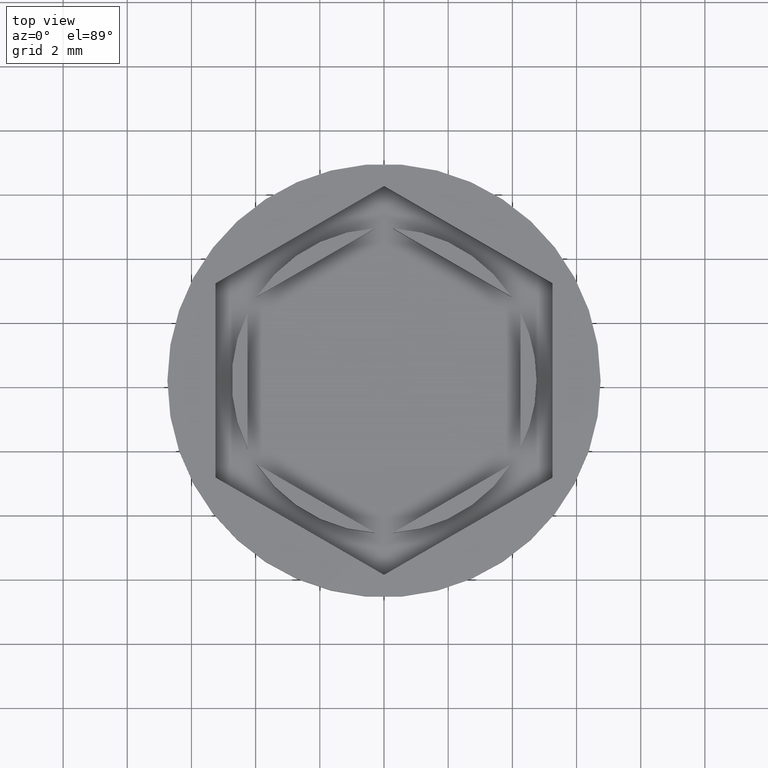
[diagram: clean part render]
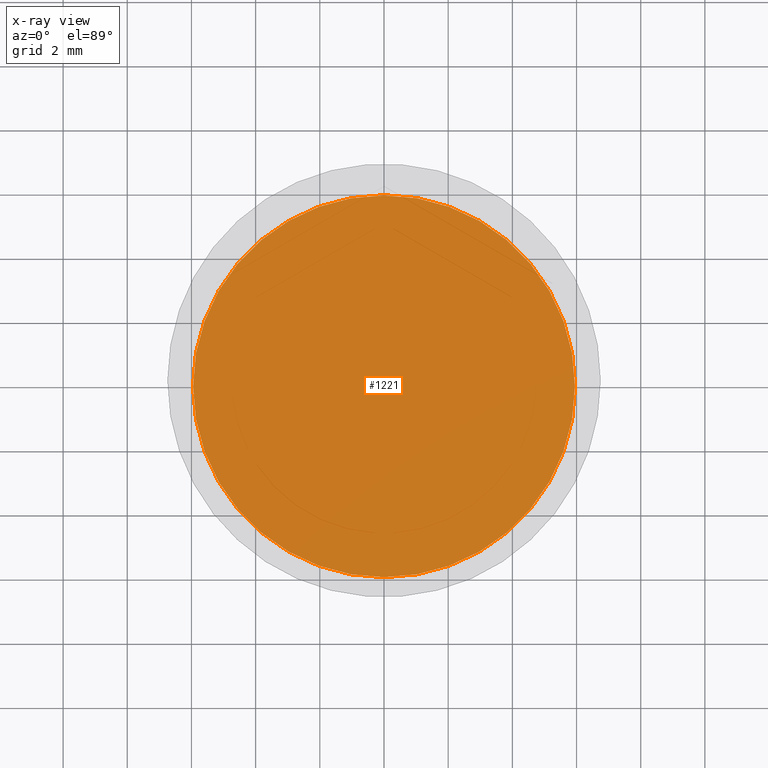
[diagram: x-ray — body ghosted, one internal face saturated and labeled with its STEP entity id]
A machine part, top view, then the same camera in x-ray: the body is ghosted and one INTERNAL B-rep face — a face not visible from any outside direction — is saturated and labeled: STEP entity #1221.
In plain terms, the highlighted planar face has unit normal (0, 0, -1).
Its self-contained STEP definition (entity closure, byte-faithful):
#32 = PLANE ( 'NONE',  #1092 ) ;
#216 = CARTESIAN_POINT ( 'NONE',  ( -5.950000000000000178, 0.000000000000000000, -10.50000000000000000 ) ) ;
#419 = DIRECTION ( 'NONE',  ( -0.000000000000000000, -0.000000000000000000, 1.000000000000000000 ) ) ;
#466 = EDGE_CURVE ( 'NONE', #841, #1968, #603, .T. ) ;
#603 = CIRCLE ( 'NONE', #1663, 5.950000000000000178 ) ;
#644 = DIRECTION ( 'NONE',  ( -1.000000000000000000, 0.000000000000000000, -0.000000000000000000 ) ) ;
#773 = FACE_OUTER_BOUND ( 'NONE', #1547, .T. ) ;
#841 = VERTEX_POINT ( 'NONE', #1269 ) ;
#1092 = AXIS2_PLACEMENT_3D ( 'NONE', #1844, #1687, #644 ) ;
#1107 = ORIENTED_EDGE ( 'NONE', *, *, #466, .T. ) ;
#1121 = DIRECTION ( 'NONE',  ( -0.000000000000000000, -0.000000000000000000, 1.000000000000000000 ) ) ;
#1221 = ADVANCED_FACE ( 'NONE', ( #773 ), #32, .F. ) ;
#1228 = EDGE_CURVE ( 'NONE', #1968, #841, #1630, .T. ) ;
#1269 = CARTESIAN_POINT ( 'NONE',  ( 5.950000000000000178, 7.470345474798855279E-16, -10.50000000000000000 ) ) ;
#1332 = CARTESIAN_POINT ( 'NONE',  ( 0.000000000000000000, 0.000000000000000000, -10.50000000000000000 ) ) ;
#1417 = DIRECTION ( 'NONE',  ( -1.000000000000000000, 0.000000000000000000, 0.000000000000000000 ) ) ;
#1547 = EDGE_LOOP ( 'NONE', ( #1695, #1107 ) ) ;
#1630 = CIRCLE ( 'NONE', #1724, 5.950000000000000178 ) ;
#1663 = AXIS2_PLACEMENT_3D ( 'NONE', #1332, #419, #1772 ) ;
#1687 = DIRECTION ( 'NONE',  ( 0.000000000000000000, 0.000000000000000000, -1.000000000000000000 ) ) ;
#1695 = ORIENTED_EDGE ( 'NONE', *, *, #1228, .T. ) ;
#1724 = AXIS2_PLACEMENT_3D ( 'NONE', #1869, #1121, #1417 ) ;
#1772 = DIRECTION ( 'NONE',  ( -1.000000000000000000, 0.000000000000000000, 0.000000000000000000 ) ) ;
#1844 = CARTESIAN_POINT ( 'NONE',  ( 0.000000000000000000, 0.000000000000000000, -10.50000000000000000 ) ) ;
#1869 = CARTESIAN_POINT ( 'NONE',  ( 0.000000000000000000, 0.000000000000000000, -10.50000000000000000 ) ) ;
#1968 = VERTEX_POINT ( 'NONE', #216 ) ;